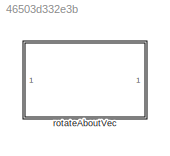
MODEL slx_46503d332e3b
KIND library
CONFIG AbsTol = auto
CONFIG EnableMultiTasking = off
CONFIG FixedStep = auto
CONFIG MaxStep = auto
CONFIG MinStep = auto
CONFIG RelTol = 1e-3
CONFIG SampleTimeConstraint = Unconstrained
CONFIG SolverName = VariableStepAuto
CONFIG StartTime = 0.0
CONFIG StopTime = 10.0
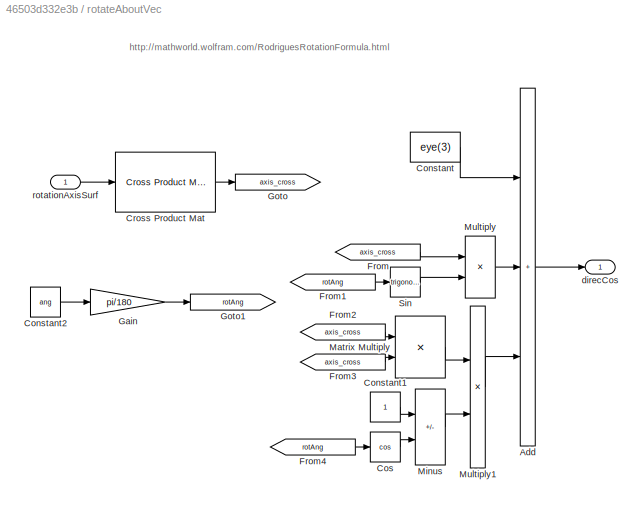
BLOCK [SubSystem] rotateAboutVec
  Ports = [1, 1]
  RequestExecContextInheritance = off
BLOCK [Sum] rotateAboutVec/Add
  IconShape = rectangular
  Inputs = +++
  Ports = [3, 1]
BLOCK [Constant] rotateAboutVec/Constant
  Value = eye(3)
  VectorParams1D = off
BLOCK [Constant] rotateAboutVec/Constant1
BLOCK [Constant] rotateAboutVec/Constant2
  Value = ang
BLOCK [Trigonometry] rotateAboutVec/Cos
  Operator = cos
  Ports = [1, 1]
BLOCK [Reference] rotateAboutVec/Cross Product Mat  REF=xProdMatrix_ul/Cross Product Mat
  Ports = [1, 1]
  SourceBlock = xProdMatrix_ul/Cross Product Mat
  SourceType = SubSystem
BLOCK [From] rotateAboutVec/From
  GotoTag = axis_cross
BLOCK [From] rotateAboutVec/From1
  GotoTag = rotAng
BLOCK [From] rotateAboutVec/From2
  GotoTag = axis_cross
BLOCK [From] rotateAboutVec/From3
  GotoTag = axis_cross
BLOCK [From] rotateAboutVec/From4
  GotoTag = rotAng
BLOCK [Gain] rotateAboutVec/Gain
  Gain = pi/180
BLOCK [Goto] rotateAboutVec/Goto
  GotoTag = axis_cross
BLOCK [Goto] rotateAboutVec/Goto1
  GotoTag = rotAng
BLOCK [Product] rotateAboutVec/Matrix Multiply
  Multiplication = Matrix(*)
  Ports = [2, 1]
BLOCK [Sum] rotateAboutVec/Minus
  IconShape = rectangular
  Inputs = +-
  Ports = [2, 1]
BLOCK [Product] rotateAboutVec/Multiply
  Ports = [2, 1]
BLOCK [Product] rotateAboutVec/Multiply1
  Ports = [2, 1]
BLOCK [Trigonometry] rotateAboutVec/Sin
  Ports = [1, 1]
BLOCK [Outport] rotateAboutVec/direcCos
  VectorParamsAs1DForOutWhenUnconnected = off
BLOCK [Inport] rotateAboutVec/rotationAxisSurf
ANNOTATION rotateAboutVec: http://mathworld.wolfram.com/RodriguesRotationFormula.html
LINE rotateAboutVec/Add:1 -> rotateAboutVec/direcCos:1
LINE rotateAboutVec/Constant1:1 -> rotateAboutVec/Minus:1
LINE rotateAboutVec/Constant2:1 -> rotateAboutVec/Gain:1
LINE rotateAboutVec/Constant:1 -> rotateAboutVec/Add:1
LINE rotateAboutVec/Cos:1 -> rotateAboutVec/Minus:2
LINE rotateAboutVec/Cross Product Mat:1 -> rotateAboutVec/Goto:1
LINE rotateAboutVec/From1:1 -> rotateAboutVec/Sin:1
LINE rotateAboutVec/From2:1 -> rotateAboutVec/Matrix Multiply:1
LINE rotateAboutVec/From3:1 -> rotateAboutVec/Matrix Multiply:2
LINE rotateAboutVec/From4:1 -> rotateAboutVec/Cos:1
LINE rotateAboutVec/From:1 -> rotateAboutVec/Multiply:1
LINE rotateAboutVec/Gain:1 -> rotateAboutVec/Goto1:1
LINE rotateAboutVec/Matrix Multiply:1 -> rotateAboutVec/Multiply1:1
LINE rotateAboutVec/Minus:1 -> rotateAboutVec/Multiply1:2
LINE rotateAboutVec/Multiply1:1 -> rotateAboutVec/Add:3
LINE rotateAboutVec/Multiply:1 -> rotateAboutVec/Add:2
LINE rotateAboutVec/Sin:1 -> rotateAboutVec/Multiply:2
LINE rotateAboutVec/rotationAxisSurf:1 -> rotateAboutVec/Cross Product Mat:1
